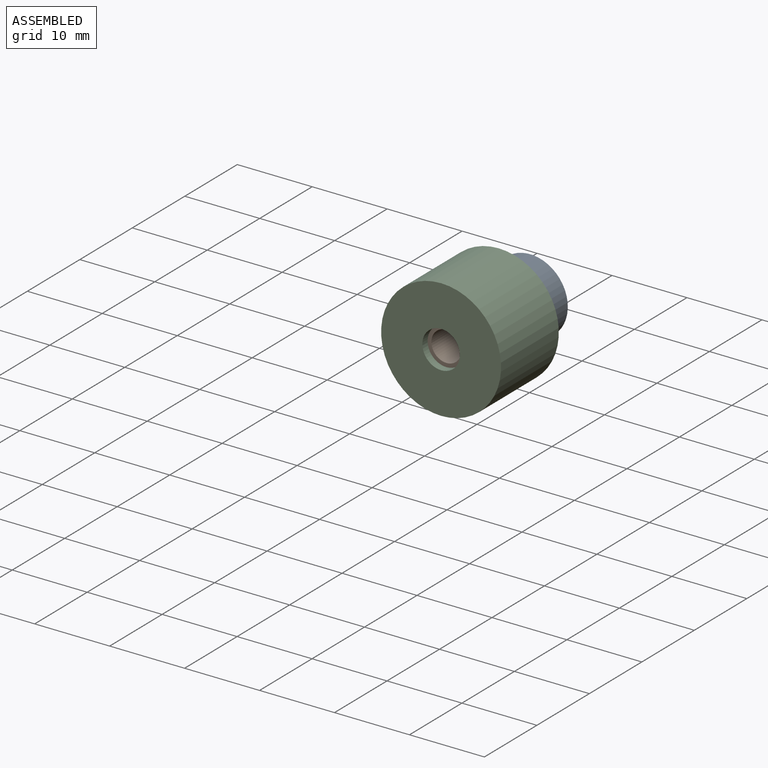
[diagram: assembled view]
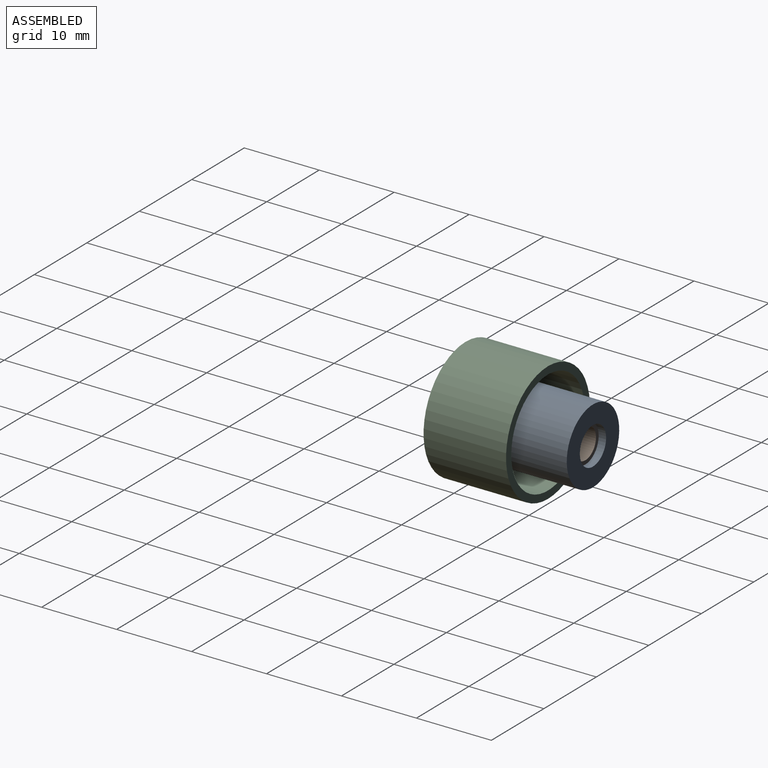
[diagram: assembled view, second angle]
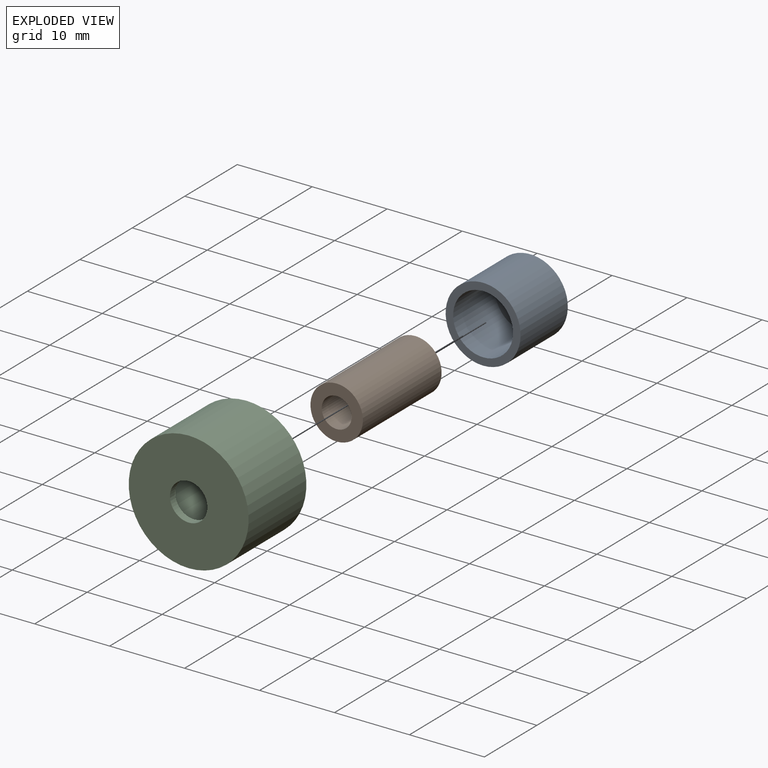
[diagram: exploded view]
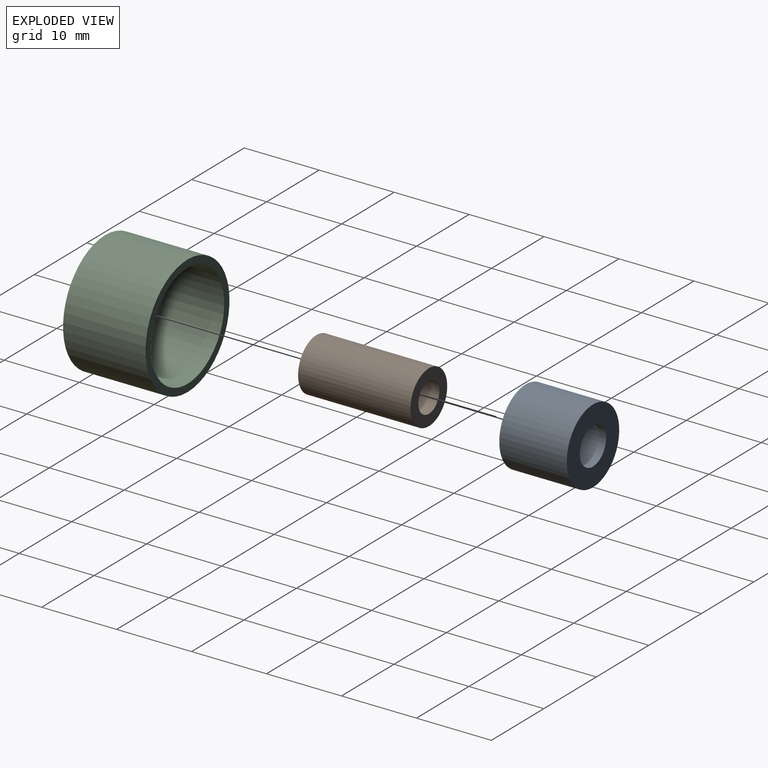
[diagram: exploded view, second angle]
ASSEMBLY  parts=3 mates=2
PART A: 6 faces, bbox 10x9x10 mm
  f0: plane 8x8mm, normal (0,-1,0), area 30.6mm2, adj f1,f4
  f1: cylinder r=2.5mm len=5mm, axis (0,1,0), area 15.7mm2, adj f0,f3
  f2: cylinder r=5mm len=10mm, axis (0,1,0), area 282.7mm2, adj f3,f5
  f3: plane 10x10mm, normal (0,1,0), area 58.9mm2, adj f1,f2
  f4: cylinder r=4mm len=8mm, axis (0,1,0), area 201.1mm2, adj f0,f5
  f5: plane 10x10mm, normal (0,-1,0), area 28.3mm2, adj f2,f4
PART B: 7 faces, bbox 7x15x7 mm
  f0: cylinder r=3.5mm len=15mm, axis (0,1,0), area 329.9mm2, adj f1,f2
  f1: plane 7x7mm, normal (0,-1,0), area 25.9mm2, adj f0,f3
  f2: plane 7x7mm, normal (0,1,0), area 25.9mm2, adj f0,f5
  f3: cylinder r=2mm len=5mm, axis (0,-1,0), area 62.8mm2, adj f1,f4
  f4: plane 4x4mm, normal (0,-1,0), area 12.6mm2, adj f3
  f5: cylinder r=2mm len=5mm, axis (0,1,0), area 62.8mm2, adj f2,f6
  f6: plane 4x4mm, normal (0,1,0), area 12.6mm2, adj f5
PART C: 6 faces, bbox 16x11x16 mm
  f0: plane 14x14mm, normal (0,-1,0), area 134.3mm2, adj f1,f4
  f1: cylinder r=2.5mm len=5mm, axis (0,1,0), area 15.7mm2, adj f0,f3
  f2: cylinder r=8mm len=16mm, axis (0,1,0), area 552.9mm2, adj f3,f5
  f3: plane 16x16mm, normal (0,1,0), area 181.4mm2, adj f1,f2
  f4: cylinder r=7mm len=14mm, axis (0,1,0), area 439.8mm2, adj f0,f5
  f5: plane 16x16mm, normal (0,-1,0), area 47.1mm2, adj f2,f4
PLACE A t=(6.06,5.79,5.1)mm
PLACE B t=(6.06,4.79,5.1)mm
PLACE C rot(axis=(1,0,0),180deg) t=(6.06,-11.21,5.1)mm
MATE revolute A.f1 <-> B.f0  axis (0,-1,0) through (6.06,4.79,5.1)mm
MATE revolute C.f1 <-> B.f3  axis (0,1,0) through (6.06,-10.21,5.1)mm
